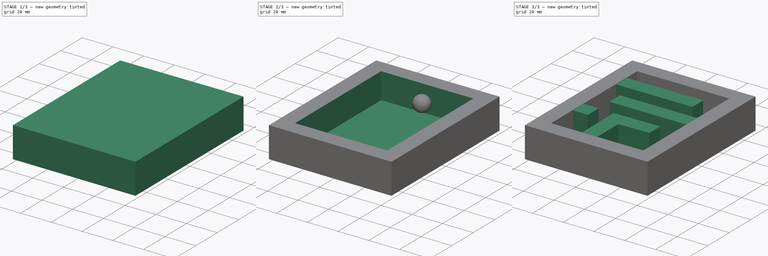
[diagram: build sequence overview — one tinted view per stage of 3, left to right]
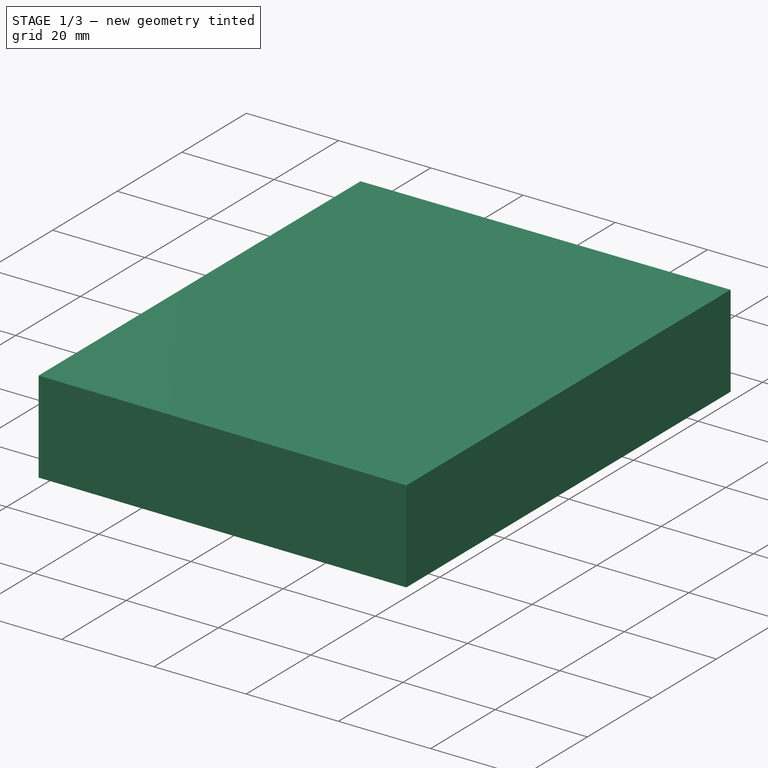
[diagram: stage 1 of 3 — iso view after this stage's code; geometry added in this stage tinted green]
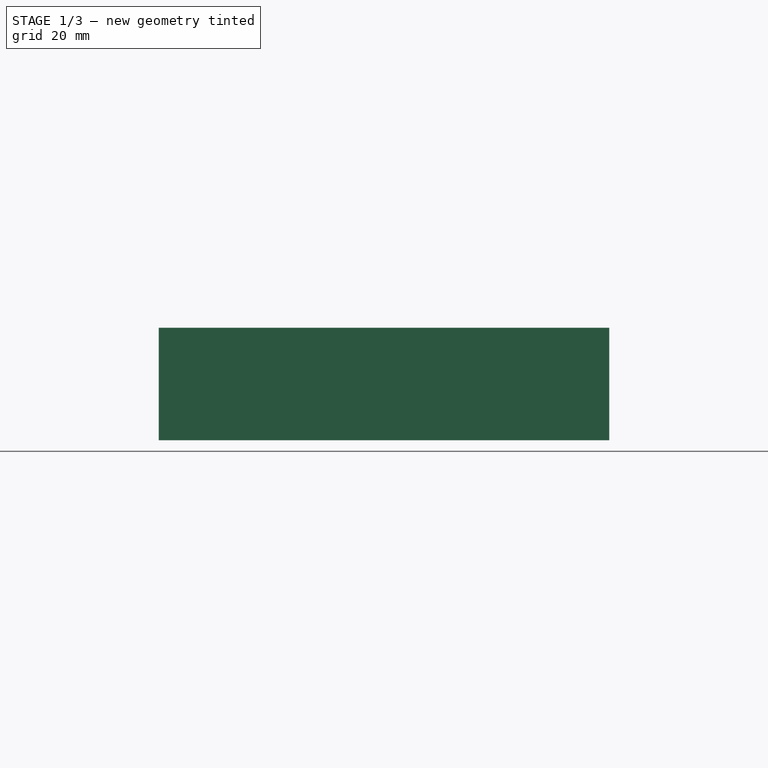
[diagram: stage 1 of 3 — front view after this stage's code; geometry added in this stage tinted green]
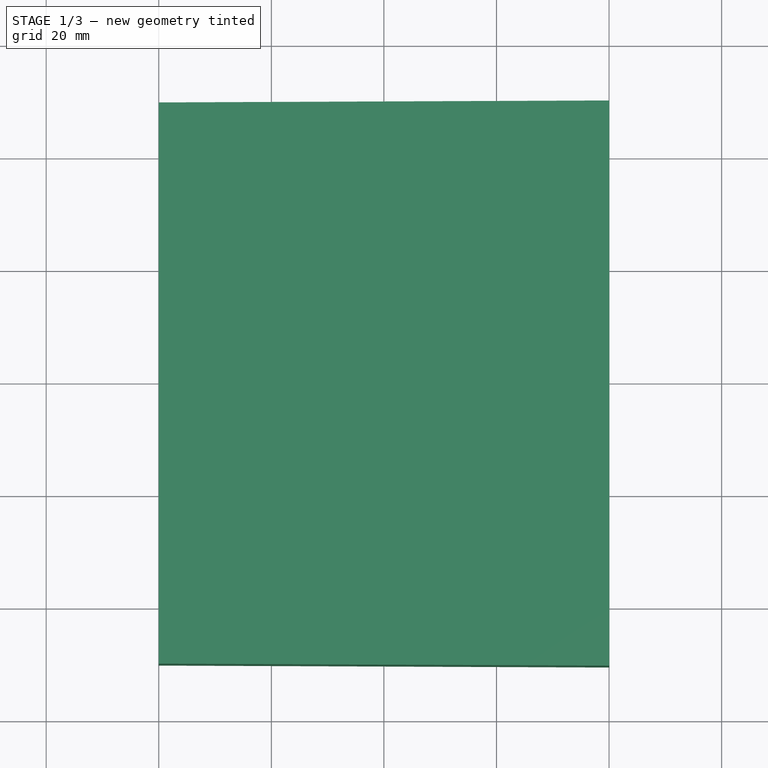
[diagram: stage 1 of 3 — top view after this stage's code; geometry added in this stage tinted green]
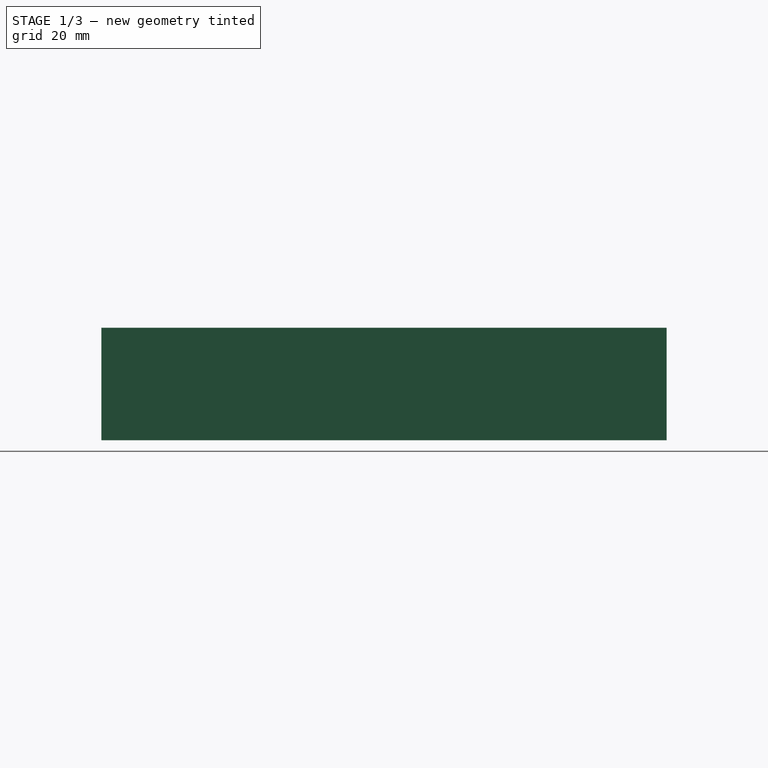
[diagram: stage 1 of 3 — right view after this stage's code; geometry added in this stage tinted green]
FCSTD DOCUMENT  (FreeCAD 0.21R33771 (Git))
Label: OJT1_T17R03_laberint
License: All rights reserved
LicenseURL: http://en.wikipedia.org/wiki/All_rights_reserved
objects: Sketcher::SketchObject×4, PartDesign::Pad×2, PartDesign::Pocket×2, PartDesign::Body×1, Part::Sphere×1
note: 14 computed .brp shape members not serialized (recipe doc carries the construction recipe); baked Part::Feature solids carry a one-line shape summary decoded from their .brp

FEATURE [Sketcher::SketchObject] Sketch
  FullyConstrained = false
  MapMode = 5
  Support = -> [XY_Plane]
  sketch-geometry (4):
    g0: LineSegment StartX=-39.9931 StartY=49.6558 StartZ=0 EndX=40.0239 EndY=50.0076 EndZ=0
    g1: LineSegment StartX=40.0239 StartY=50.0076 StartZ=0 EndX=40.0239 EndY=-50.4093 EndZ=0
    g2: LineSegment StartX=40.0239 StartY=-50.4093 StartZ=0 EndX=-39.9931 EndY=-50.0576 EndZ=0
    g3: LineSegment StartX=-39.9931 StartY=-50.0576 StartZ=0 EndX=-39.9931 EndY=49.6558 EndZ=0
  constraints (4):
    c: Coincident(g0,g1)
    c: Coincident(g1,g2)
    c: Coincident(g2,g3)
    c: Coincident(g3,g0)
FEATURE [PartDesign::Pad] Pad
  Direction = (0,0,1)
  Length = 20
  Length2 = 10
  Profile = -> Sketch
  ReferenceAxis = -> Sketch [N_Axis]
  Type = 0
FEATURE [PartDesign::Body] Body
  Group = -> [Sketch,Pad,Sketch001,Pocket,Sketch002,Pad001,Sketch003,Pocket001]
  Origin = -> Origin
  Tip = -> Pocket001
FEATURE [Part::Sphere] Sphere
  Angle1 = -90
  Angle2 = 90
  Angle3 = 360
  AttacherType = Attacher::AttachEngine3D
  Placement = pos=(0,35,11) rot=(0,0,1;0rad)
  Radius = 5.1
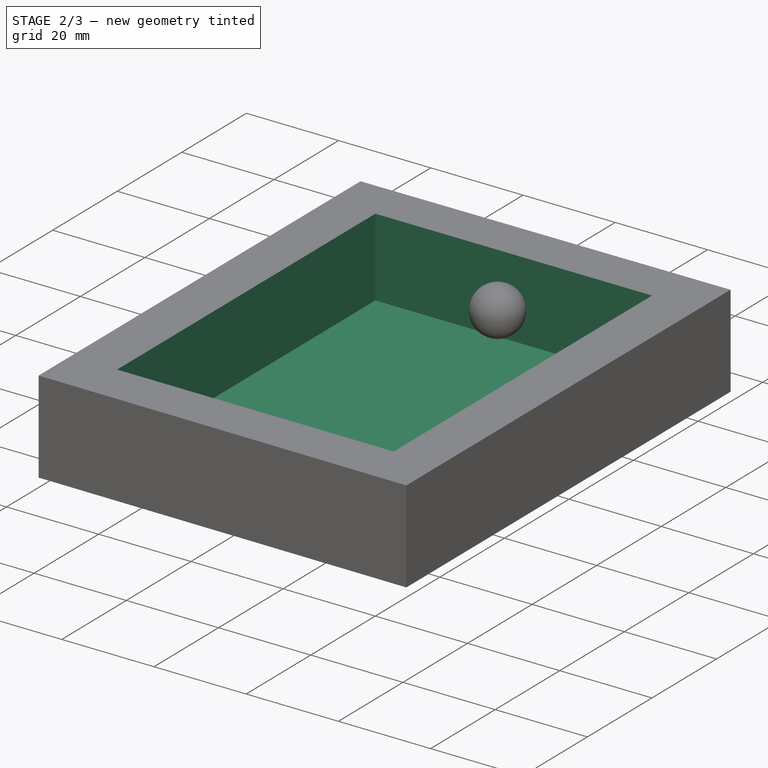
[diagram: stage 2 of 3 — iso view after this stage's code; geometry added in this stage tinted green]
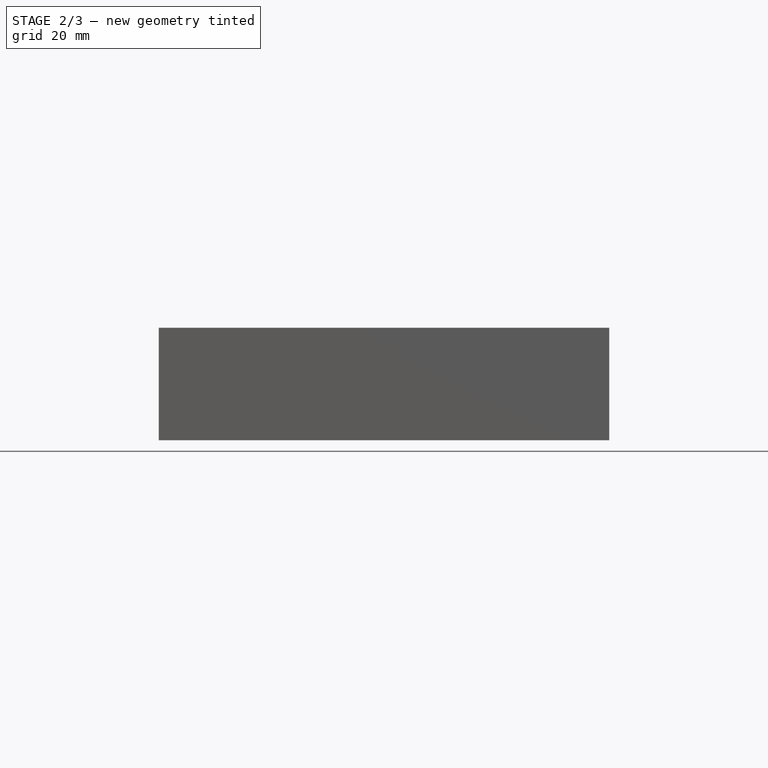
[diagram: stage 2 of 3 — front view after this stage's code; geometry added in this stage tinted green]
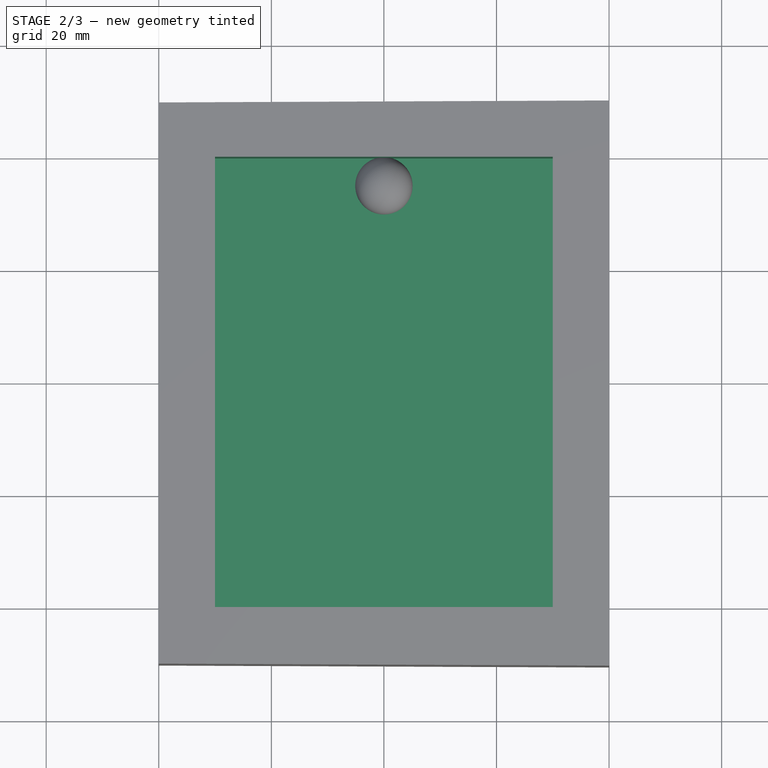
[diagram: stage 2 of 3 — top view after this stage's code; geometry added in this stage tinted green]
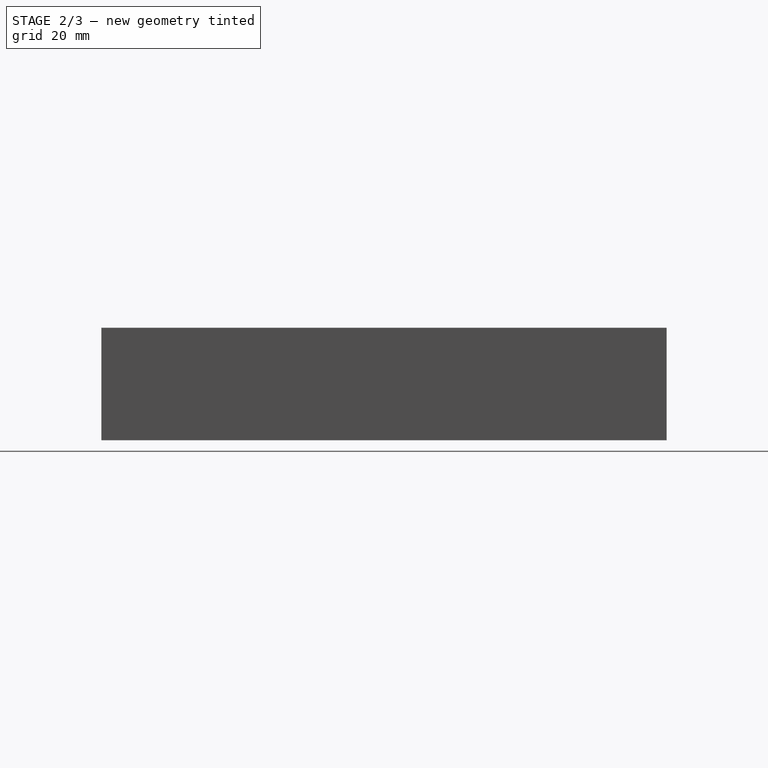
[diagram: stage 2 of 3 — right view after this stage's code; geometry added in this stage tinted green]
FEATURE [Sketcher::SketchObject] Sketch001
  FullyConstrained = false
  MapMode = 5
  Placement = pos=(0,0,20) rot=(0,0,1;0rad)
  Support = -> [Pad]
  sketch-geometry (4):
    g0: LineSegment StartX=-30 StartY=40 StartZ=0 EndX=30 EndY=40 EndZ=0
    g1: LineSegment StartX=30 StartY=40 StartZ=0 EndX=30 EndY=-40 EndZ=0
    g2: LineSegment StartX=30 StartY=-40 StartZ=0 EndX=-30 EndY=-40 EndZ=0
    g3: LineSegment StartX=-30 StartY=-40 StartZ=0 EndX=-30 EndY=40 EndZ=0
  constraints (8):
    c: Horizontal(g0)
    c: Coincident(g0,g1)
    c: Vertical(g1)
    c: Coincident(g1,g2)
    c: Horizontal(g2)
    c: Coincident(g2,g3)
    c: Coincident(g3,g0)
    c: Vertical(g3)
FEATURE [PartDesign::Pocket] Pocket
  BaseFeature = -> Pad
  Direction = (0,0,-1)
  Length = 17
  Length2 = 5
  Profile = -> Sketch001
  ReferenceAxis = -> Sketch001 [N_Axis]
  Type = 0
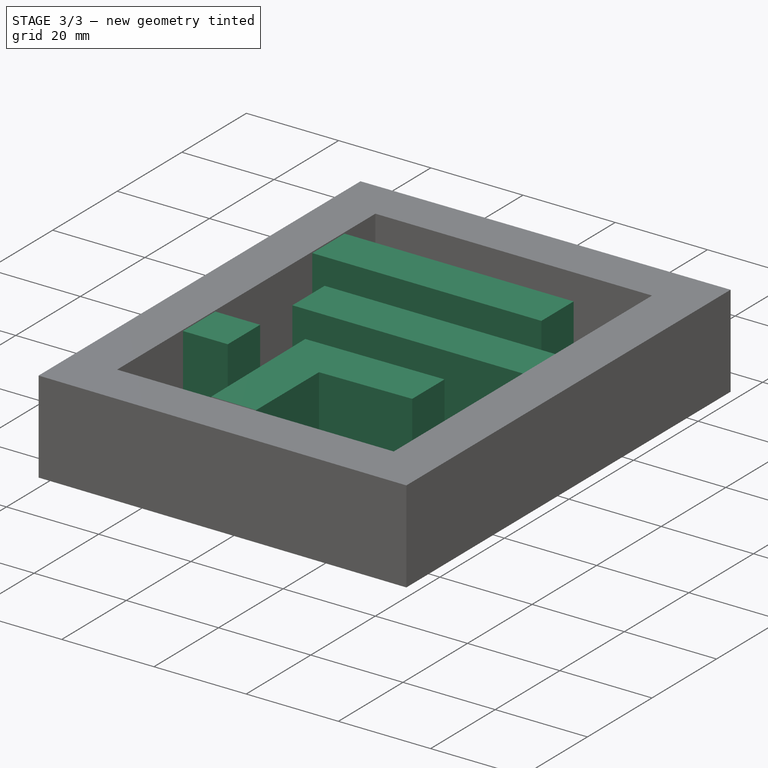
[diagram: stage 3 of 3 — iso view after this stage's code; geometry added in this stage tinted green]
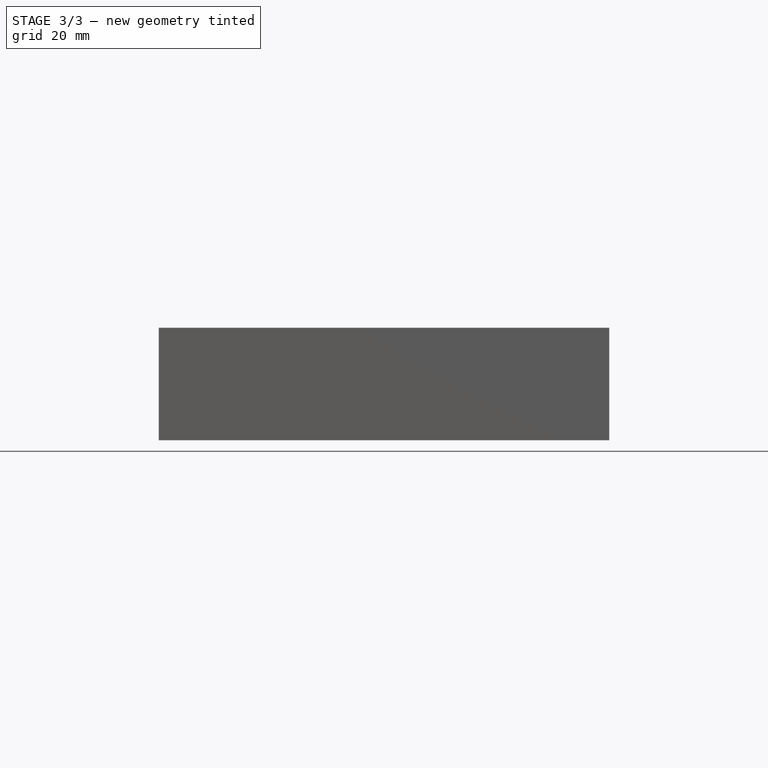
[diagram: stage 3 of 3 — front view after this stage's code; geometry added in this stage tinted green]
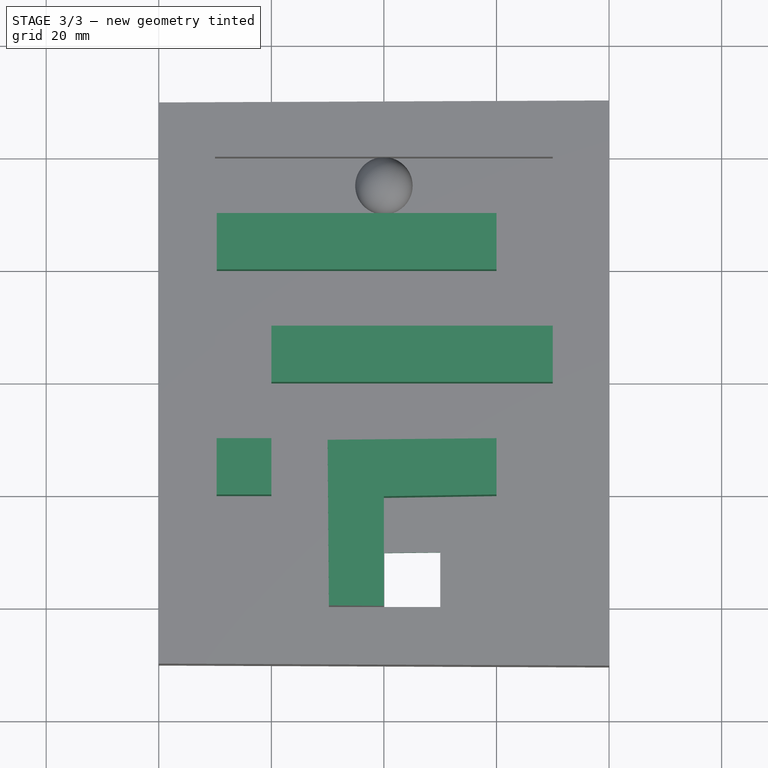
[diagram: stage 3 of 3 — top view after this stage's code; geometry added in this stage tinted green]
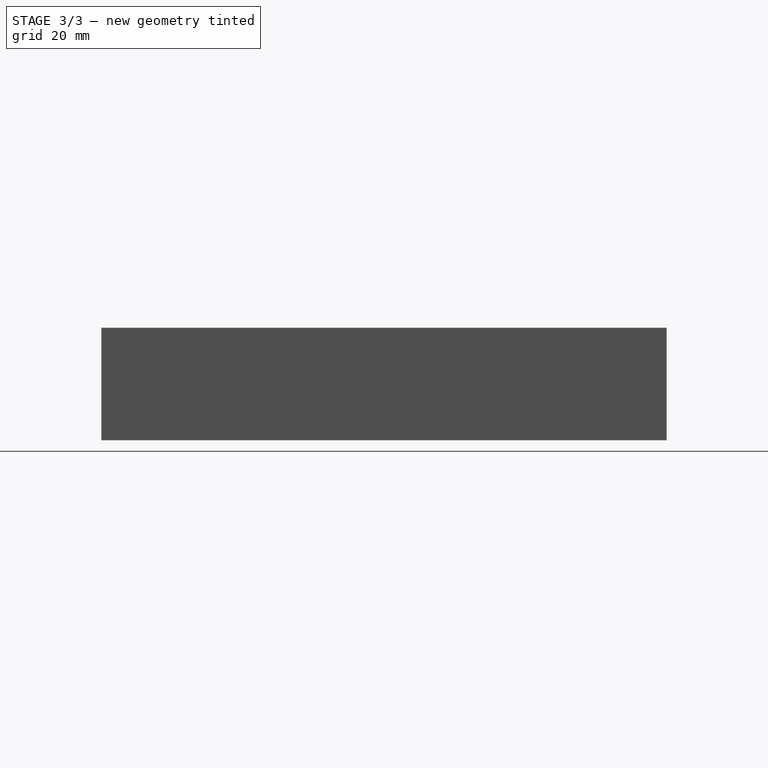
[diagram: stage 3 of 3 — right view after this stage's code; geometry added in this stage tinted green]
FEATURE [Sketcher::SketchObject] Sketch002
  FullyConstrained = false
  MapMode = 5
  Placement = pos=(0,0,3) rot=(0,0,1;0rad)
  Support = -> [Pocket]
  sketch-geometry (18):
    g0: LineSegment StartX=-29.6914 StartY=30 StartZ=0 EndX=-29.6914 EndY=20 EndZ=0
    g1: LineSegment StartX=-29.6914 StartY=20 StartZ=0 EndX=20 EndY=20 EndZ=0
    g2: LineSegment StartX=20 StartY=20 StartZ=0 EndX=20 EndY=30 EndZ=0
    g3: LineSegment StartX=20 StartY=30 StartZ=0 EndX=-29.6914 EndY=30 EndZ=0
    g4: LineSegment StartX=30.2359 StartY=0 StartZ=0 EndX=-20 EndY=0 EndZ=0
    g5: LineSegment StartX=-20 StartY=0 StartZ=0 EndX=-20 EndY=10 EndZ=0
    g6: LineSegment StartX=-20 StartY=10 StartZ=0 EndX=30 EndY=10 EndZ=0
    g7: LineSegment StartX=30 StartY=10 StartZ=0 EndX=30.2359 EndY=0 EndZ=0
    g8: LineSegment StartX=-29.7129 StartY=-10 StartZ=0 EndX=-29.7129 EndY=-20 EndZ=0
    g9: LineSegment StartX=-29.7129 StartY=-20 StartZ=0 EndX=-20 EndY=-20 EndZ=0
    g10: LineSegment StartX=-20 StartY=-20 StartZ=0 EndX=-20 EndY=-10 EndZ=0
    g11: LineSegment StartX=-20 StartY=-10 StartZ=0 EndX=-29.7129 EndY=-10 EndZ=0
    g12: LineSegment StartX=-9.77195 StartY=-39.7053 StartZ=0 EndX=-10 EndY=-10.2832 EndZ=0
    g13: LineSegment StartX=-10 StartY=-10.2832 StartZ=0 EndX=20 EndY=-10 EndZ=0
    g14: LineSegment StartX=20 StartY=-10 StartZ=0 EndX=20 EndY=-20 EndZ=0
    g15: LineSegment StartX=20 StartY=-20 StartZ=0 EndX=0 EndY=-20.324 EndZ=0
    g16: LineSegment StartX=0 StartY=-20.324 StartZ=0 EndX=0 EndY=-39.8099 EndZ=0
    g17: LineSegment StartX=0 StartY=-39.8099 StartZ=0 EndX=-9.77195 EndY=-39.7053 EndZ=0
  constraints (29):
    c: Vertical(g0)
    c: Coincident(g0,g1)
    c: Horizontal(g1)
    c: Coincident(g1,g2)
    c: Vertical(g2)
    c: Coincident(g2,g3)
    c: Coincident(g3,g0)
    c: Horizontal(g3)
    c: PointOnObject(g4,g-1)
    c: PointOnObject(g4,g-1)
    c: Coincident(g4,g5)
    c: Coincident(g5,g6)
    c: Horizontal(g6)
    c: Coincident(g6,g7)
    c: Coincident(g7,g4)
    c: Vertical(g8)
    c: Coincident(g8,g9)
    c: Horizontal(g9)
    c: Coincident(g9,g10)
    c: Vertical(g10)
    c: Coincident(g10,g11)
    c: Coincident(g11,g8)
    c: Horizontal(g11)
    c: Coincident(g12,g13)
    c: Coincident(g13,g14)
    c: Coincident(g14,g15)
    c: Coincident(g15,g16)
    c: Coincident(g16,g17)
    c: Coincident(g17,g12)
FEATURE [PartDesign::Pad] Pad001
  BaseFeature = -> Pocket
  Direction = (0,0,1)
  Length = 17
  Length2 = 10
  Profile = -> Sketch002
  ReferenceAxis = -> Sketch002 [N_Axis]
  Type = 0
FEATURE [Sketcher::SketchObject] Sketch003
  FullyConstrained = false
  MapMode = 5
  Placement = pos=(0,0,3) rot=(0,0,1;0rad)
  Support = -> [Pad001]
  sketch-geometry (4):
    g0: LineSegment StartX=0 StartY=-30.1048 StartZ=0 EndX=10 EndY=-30 EndZ=0
    g1: LineSegment StartX=10 StartY=-30 StartZ=0 EndX=10 EndY=-40 EndZ=0
    g2: LineSegment StartX=10 StartY=-40 StartZ=0 EndX=0 EndY=-39.6903 EndZ=0
    g3: LineSegment StartX=0 StartY=-39.6903 StartZ=0 EndX=0 EndY=-30.1048 EndZ=0
  constraints (4):
    c: Coincident(g0,g1)
    c: Coincident(g1,g2)
    c: Coincident(g2,g3)
    c: Coincident(g3,g0)
FEATURE [PartDesign::Pocket] Pocket001
  BaseFeature = -> Pad001
  Direction = (0,0,-1)
  Length = 5
  Length2 = 5
  Profile = -> Sketch003
  ReferenceAxis = -> Sketch003 [N_Axis]
  Type = 0
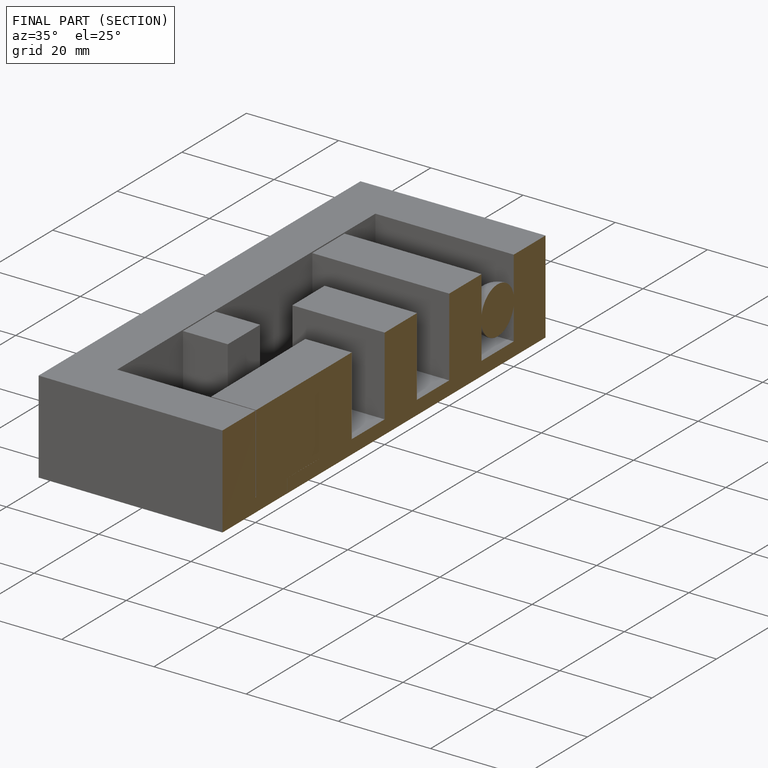
[diagram: finished part — half-section view (interior)]
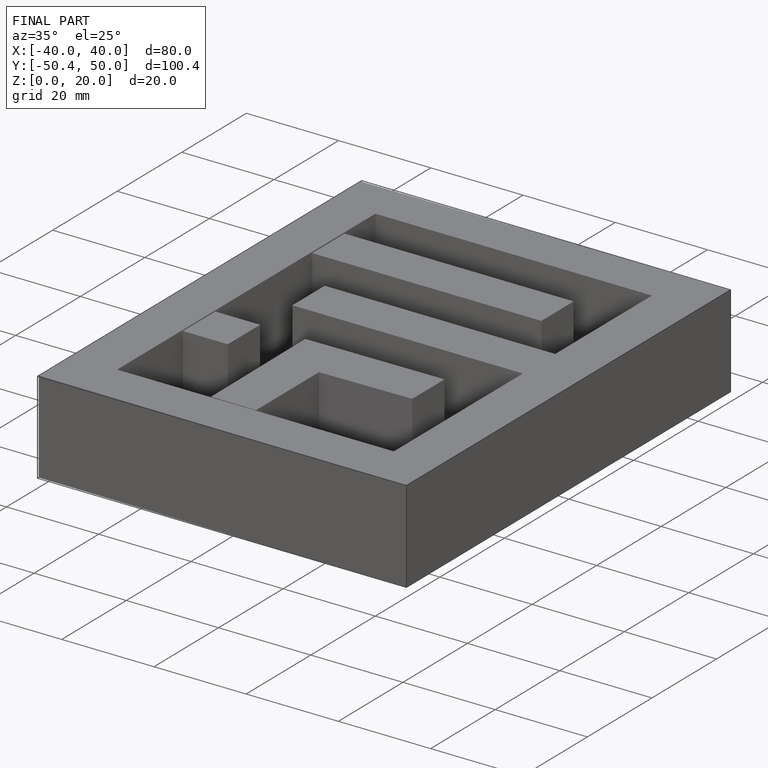
[diagram: finished part — iso view with bounding-box wireframe]
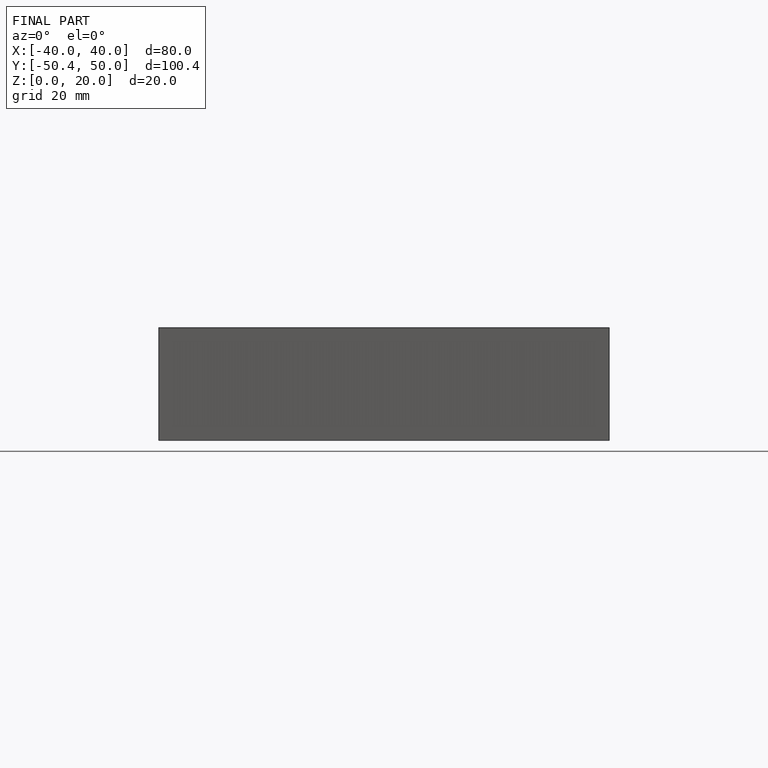
[diagram: finished part — front view with bounding-box wireframe]
